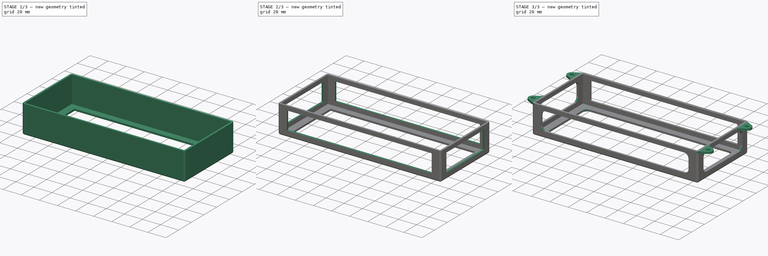
[diagram: build sequence overview — one tinted view per stage of 3, left to right]
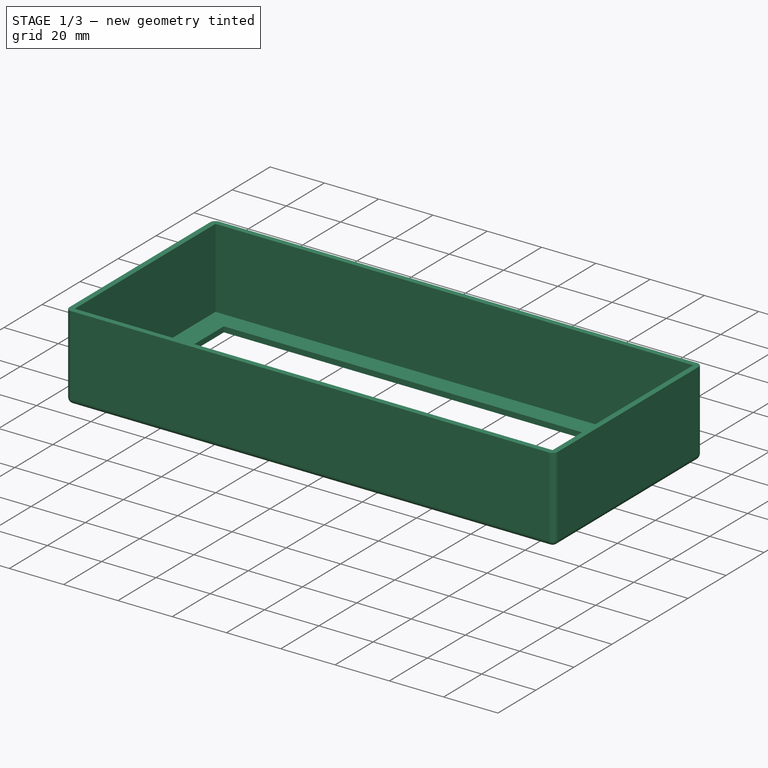
[diagram: stage 1 of 3 — iso view after this stage's code; geometry added in this stage tinted green]
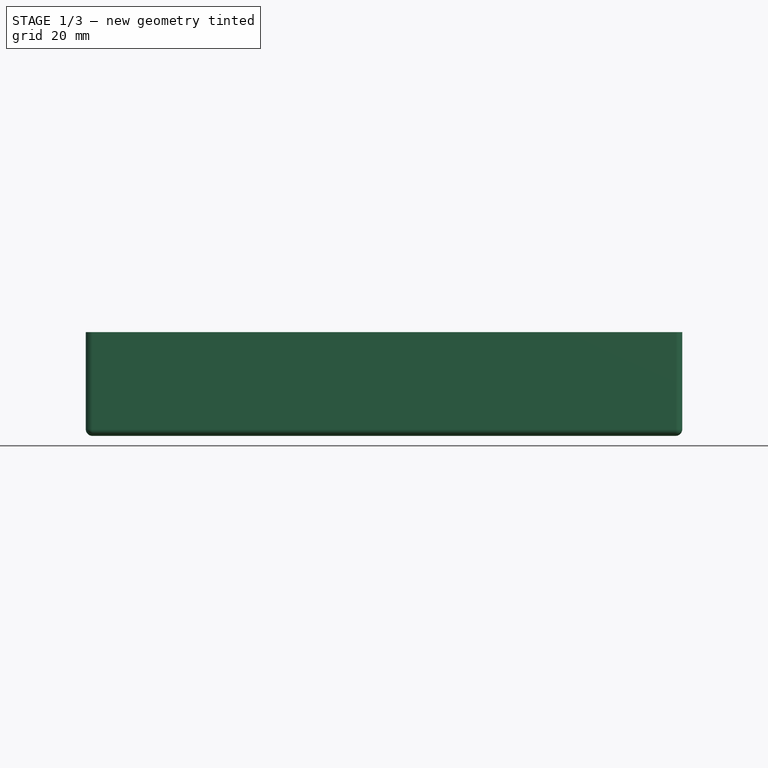
[diagram: stage 1 of 3 — front view after this stage's code; geometry added in this stage tinted green]
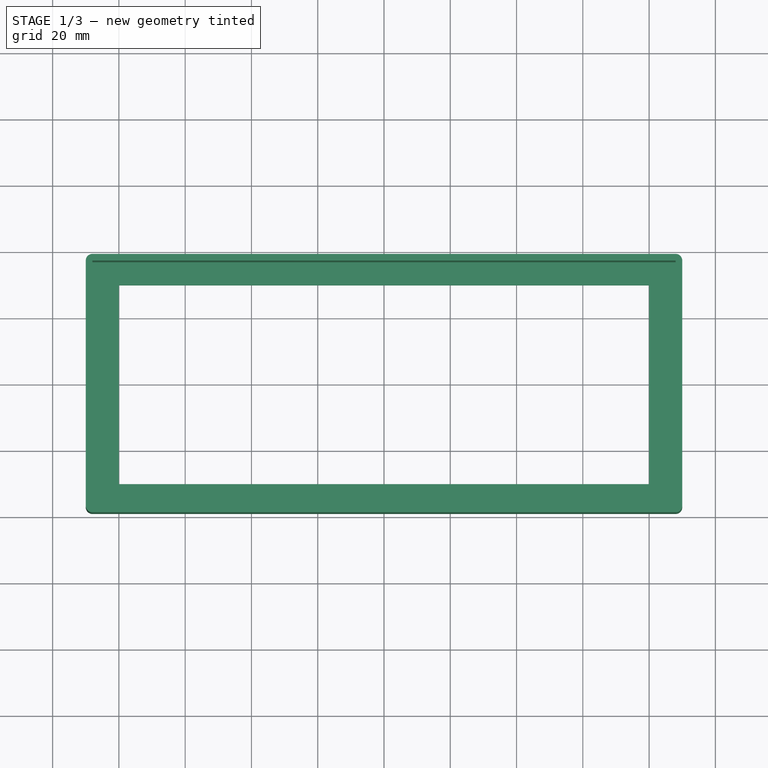
[diagram: stage 1 of 3 — top view after this stage's code; geometry added in this stage tinted green]
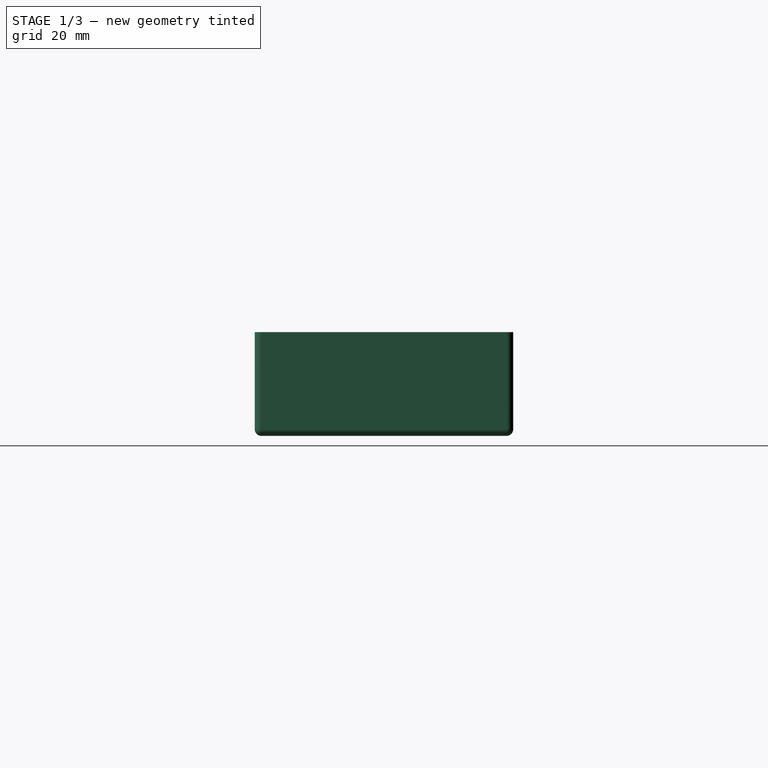
[diagram: stage 1 of 3 — right view after this stage's code; geometry added in this stage tinted green]
FCSTD DOCUMENT  (FreeCAD 0.21R33771 (Git))
Label: keepLiNK_switch_holder
License: All rights reserved
LicenseURL: https://en.wikipedia.org/wiki/All_rights_reserved
objects: Sketcher::SketchObject×5, PartDesign::Pocket×3, PartDesign::Body×2, App::Part×2, PartDesign::Pad×2, PartDesign::Fillet×2, Spreadsheet::Sheet×1, Part::Feature×1, PartDesign::Thickness×1, PartDesign::ShapeBinder×1
note: 25 computed .brp shape members not serialized (recipe doc carries the construction recipe); baked Part::Feature solids carry a one-line shape summary decoded from their .brp

FEATURE [PartDesign::Body] Body
  Origin = -> Origin
FEATURE [App::Part] Part  label="PartHolder"
  Group = -> [Body]
  Origin = -> Origin001
FEATURE [Sketcher::SketchObject] Sketch
  FullyConstrained = true
  MapMode = 5
  Support = -> [XY_Plane003]
  expr: Constraints[10] = Spreadsheet.width
  expr: Constraints[9] = Spreadsheet.depth
  sketch-geometry (4):
    g0: LineSegment StartX=-88 StartY=-37 StartZ=0 EndX=88 EndY=-37 EndZ=0
    g1: LineSegment StartX=88 StartY=-37 StartZ=0 EndX=88 EndY=37 EndZ=0
    g2: LineSegment StartX=88 StartY=37 StartZ=0 EndX=-88 EndY=37 EndZ=0
    g3: LineSegment StartX=-88 StartY=37 StartZ=0 EndX=-88 EndY=-37 EndZ=0
  constraints (11):
    c: Coincident(g0,g1)
    c: Coincident(g1,g2)
    c: Coincident(g2,g3)
    c: Coincident(g3,g0)
    c: Horizontal(g0)
    c: Horizontal(g2)
    c: Vertical(g1)
    c: Vertical(g3)
    c: Symmetric(g1,g0,g-1)
    c: DistanceY(g1,g1) = 74
    c: DistanceX(g0,g0) = 176
FEATURE [PartDesign::Pad] Pad
  Direction = (0,0,1)
  Length = 29.3
  Length2 = 10
  Profile = -> Sketch
  ReferenceAxis = -> Sketch [N_Axis]
  Type = 0
  expr: Length = Spreadsheet.height
FEATURE [Spreadsheet::Sheet] Spreadsheet
  cells = A1='width; B1==17.5 cm; C1(width)==B1 + B4; A2='height; B2==28.3 mm; C2(height)==B2 + B4; A3='depth; B3==73 mm; C3(depth)==B3 + B4; A4='tolerance; B4==1 mm
FEATURE [Part::Feature] Part__Feature  label="C-5406491-1"
  Placement = pos=(-21.4,-38.4,13.7) rot=(1,0,0;1.5708rad)
  shape: bbox 116.9 x 21.34 x 18.5 mm, 2014 faces (baked)
FEATURE [Sketcher::SketchObject] Sketch001
  FullyConstrained = true
  MapMode = 5
  Support = -> [XY_Plane003]
  sketch-geometry (4):
    g0: LineSegment StartX=-80 StartY=30 StartZ=0 EndX=80 EndY=30 EndZ=0
    g1: LineSegment StartX=80 StartY=30 StartZ=0 EndX=80 EndY=-30 EndZ=0
    g2: LineSegment StartX=80 StartY=-30 StartZ=0 EndX=-80 EndY=-30 EndZ=0
    g3: LineSegment StartX=-80 StartY=-30 StartZ=0 EndX=-80 EndY=30 EndZ=0
  constraints (11):
    c: Coincident(g0,g1)
    c: Coincident(g1,g2)
    c: Coincident(g2,g3)
    c: Coincident(g3,g0)
    c: Horizontal(g0)
    c: Horizontal(g2)
    c: Vertical(g1)
    c: Vertical(g3)
    c: Symmetric(g2,g0,g-1)
    c: DistanceX(g0,g0) = 160
    c: DistanceY(g3,g3) = 60
FEATURE [Sketcher::SketchObject] Sketch002
  ExternalGeometry = -> [Pad]
  FullyConstrained = true
  MapMode = 5
  Placement = pos=(0,0,0) rot=(1,0,0;1.5708rad)
  Support = -> [XZ_Plane003]
  sketch-geometry (5):
    g0: LineSegment StartX=-80 StartY=24.65 StartZ=0 EndX=80 EndY=24.65 EndZ=0
    g1: LineSegment StartX=80 StartY=24.65 StartZ=0 EndX=80 EndY=4.65 EndZ=0
    g2: LineSegment StartX=80 StartY=4.65 StartZ=0 EndX=-80 EndY=4.65 EndZ=0
    g3: LineSegment StartX=-80 StartY=4.65 StartZ=0 EndX=-80 EndY=24.65 EndZ=0
    g4: GeomPoint X=-1.3e-15 Y=14.65 Z=0
  constraints (12):
    c: Coincident(g0,g1)
    c: Coincident(g1,g2)
    c: Coincident(g2,g3)
    c: Coincident(g3,g0)
    c: Horizontal(g0)
    c: Horizontal(g2)
    c: Vertical(g1)
    c: Vertical(g3)
    c: Symmetric(g0,g2,g4)
    c: Symmetric(g-4,g-3,g4)
    c: DistanceX(g0,g0) = 160
    c: DistanceY(g3,g3) = 20
FEATURE [Sketcher::SketchObject] Sketch003
  ExternalGeometry = -> [Pad]
  FullyConstrained = true
  MapMode = 5
  Placement = pos=(0,0,0) rot=(0.57735,0.57735,0.57735;2.0944rad)
  Support = -> [YZ_Plane003]
  sketch-geometry (5):
    g0: LineSegment StartX=-30 StartY=24.65 StartZ=0 EndX=30 EndY=24.65 EndZ=0
    g1: LineSegment StartX=30 StartY=24.65 StartZ=0 EndX=30 EndY=4.65 EndZ=0
    g2: LineSegment StartX=30 StartY=4.65 StartZ=0 EndX=-30 EndY=4.65 EndZ=0
    g3: LineSegment StartX=-30 StartY=4.65 StartZ=0 EndX=-30 EndY=24.65 EndZ=0
    g4: GeomPoint X=1.86e-14 Y=14.65 Z=0
  constraints (12):
    c: Coincident(g0,g1)
    c: Coincident(g1,g2)
    c: Coincident(g2,g3)
    c: Coincident(g3,g0)
    c: Horizontal(g0)
    c: Horizontal(g2)
    c: Vertical(g1)
    c: Vertical(g3)
    c: Symmetric(g2,g0,g4)
    c: Symmetric(g-4,g-3,g4)
    c: DistanceY(g3,g3) = 20
    c: DistanceX(g0,g0) = 60
FEATURE [PartDesign::Thickness] Thickness
  Base = -> Pad [Face6]
  BaseFeature = -> Pad
  Intersection = false
  Join = 0
  Mode = 1
  SupportTransform = false
  Value = 2
FEATURE [PartDesign::Pocket] Pocket
  BaseFeature = -> Thickness
  Direction = (0,0,-1)
  Length = 5
  Length2 = 5
  Profile = -> Sketch001
  ReferenceAxis = -> Sketch001 [N_Axis]
  Type = 1
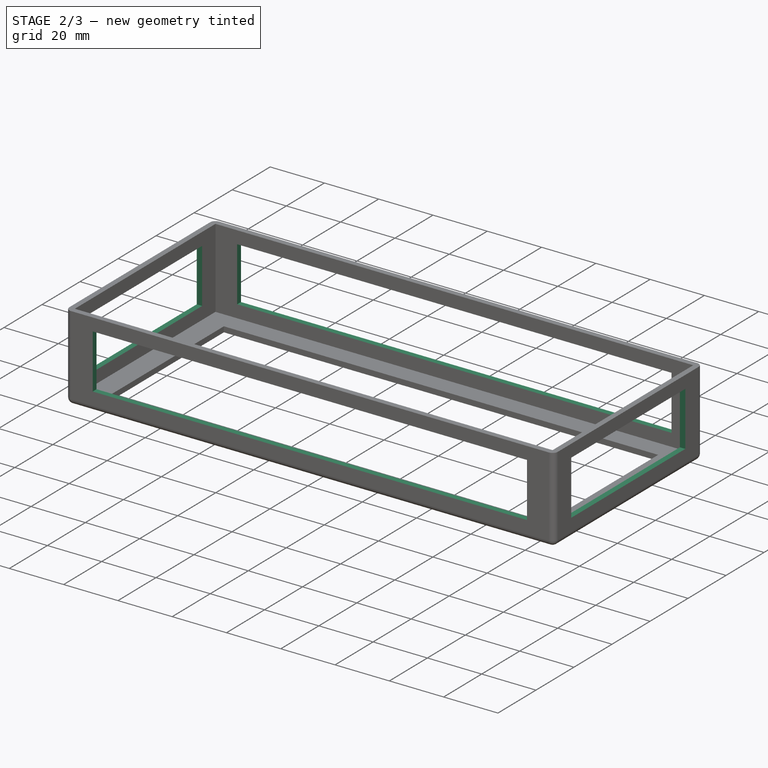
[diagram: stage 2 of 3 — iso view after this stage's code; geometry added in this stage tinted green]
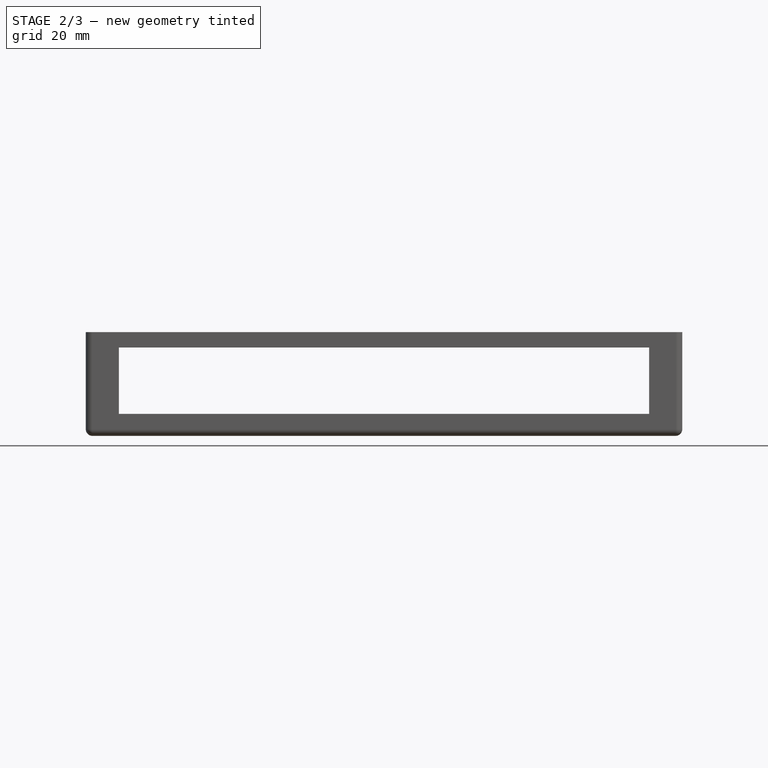
[diagram: stage 2 of 3 — front view after this stage's code; geometry added in this stage tinted green]
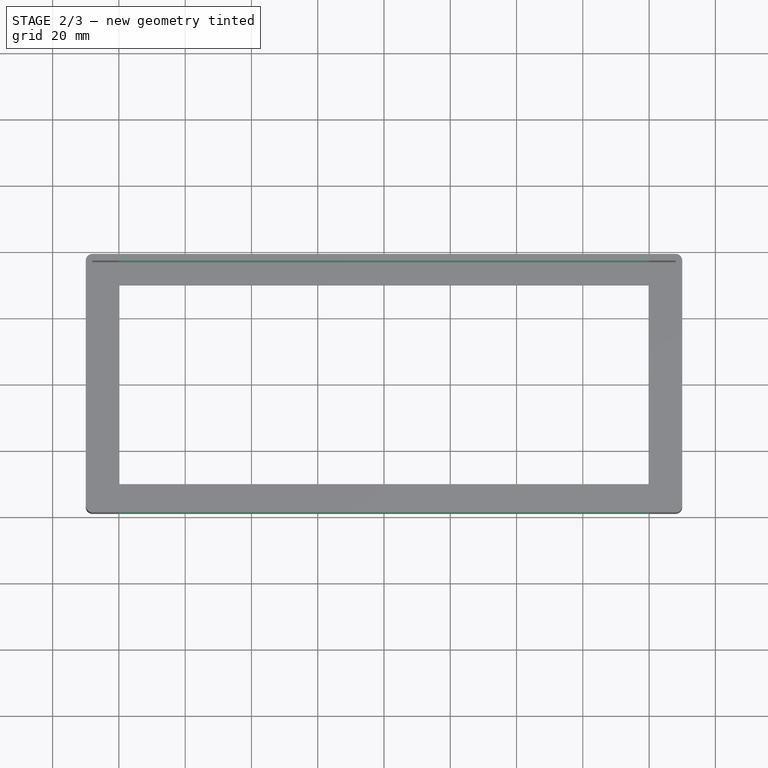
[diagram: stage 2 of 3 — top view after this stage's code; geometry added in this stage tinted green]
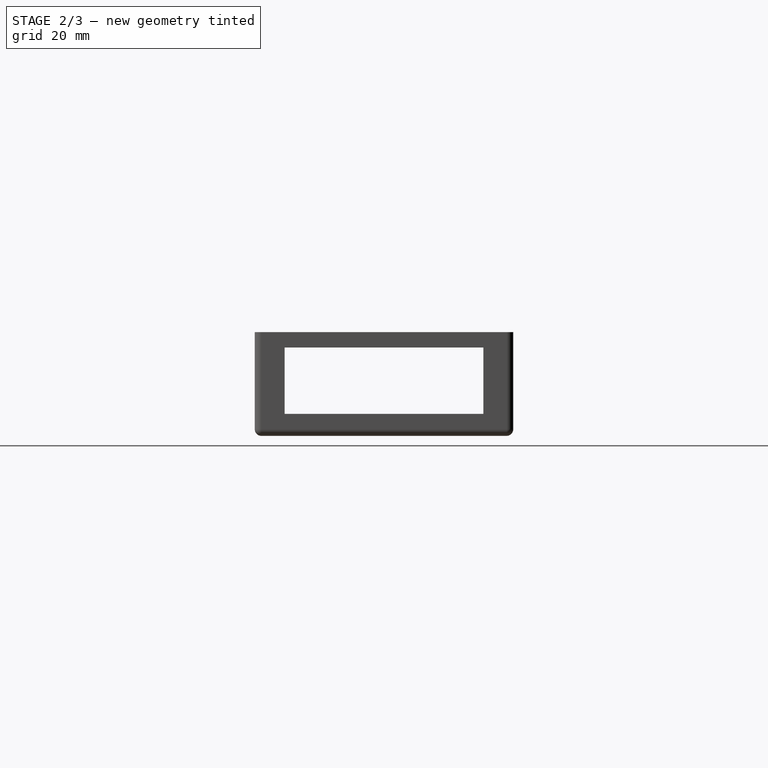
[diagram: stage 2 of 3 — right view after this stage's code; geometry added in this stage tinted green]
FEATURE [PartDesign::Pocket] Pocket001
  BaseFeature = -> Pocket
  Direction = (-1,2e-16,-3e-16)
  Length = 5
  Length2 = 5
  Midplane = true
  Profile = -> Sketch003
  ReferenceAxis = -> Sketch003 [N_Axis]
  Type = 1
FEATURE [PartDesign::Pocket] Pocket002
  BaseFeature = -> Pocket001
  Direction = (0,1,2e-16)
  Length = 5
  Length2 = 5
  Midplane = true
  Profile = -> Sketch002
  ReferenceAxis = -> Sketch002 [N_Axis]
  Type = 1
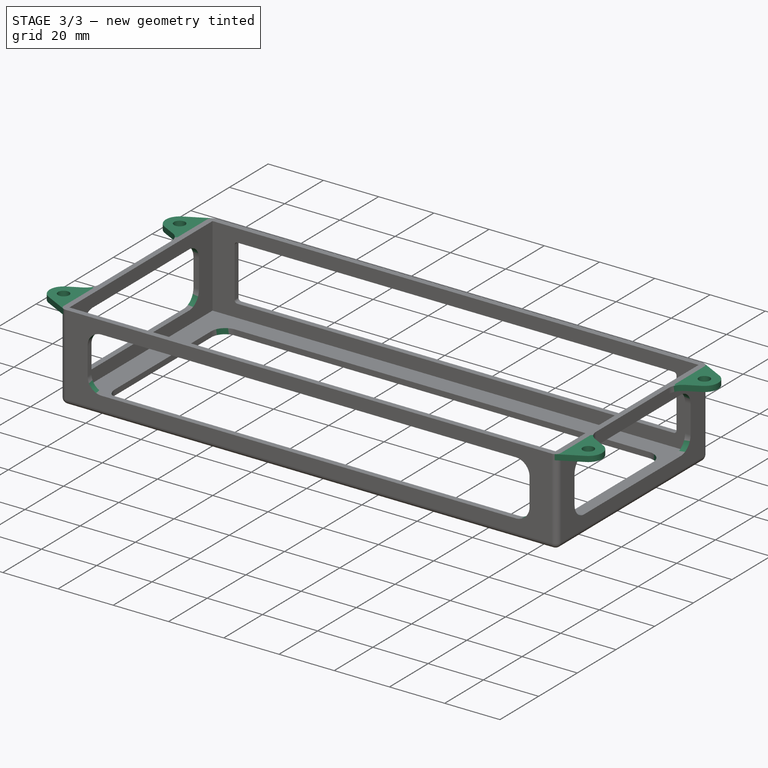
[diagram: stage 3 of 3 — iso view after this stage's code; geometry added in this stage tinted green]
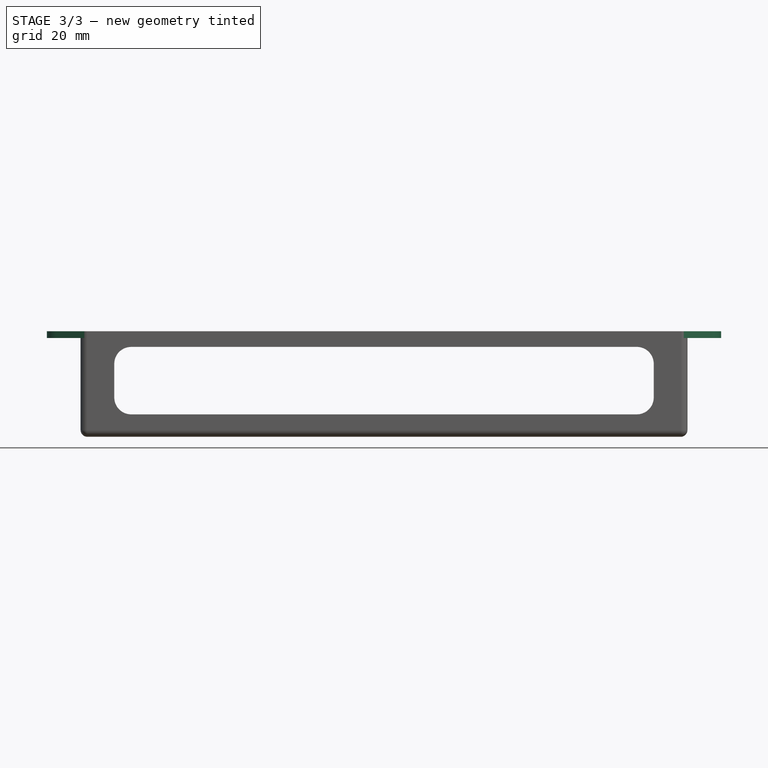
[diagram: stage 3 of 3 — front view after this stage's code; geometry added in this stage tinted green]
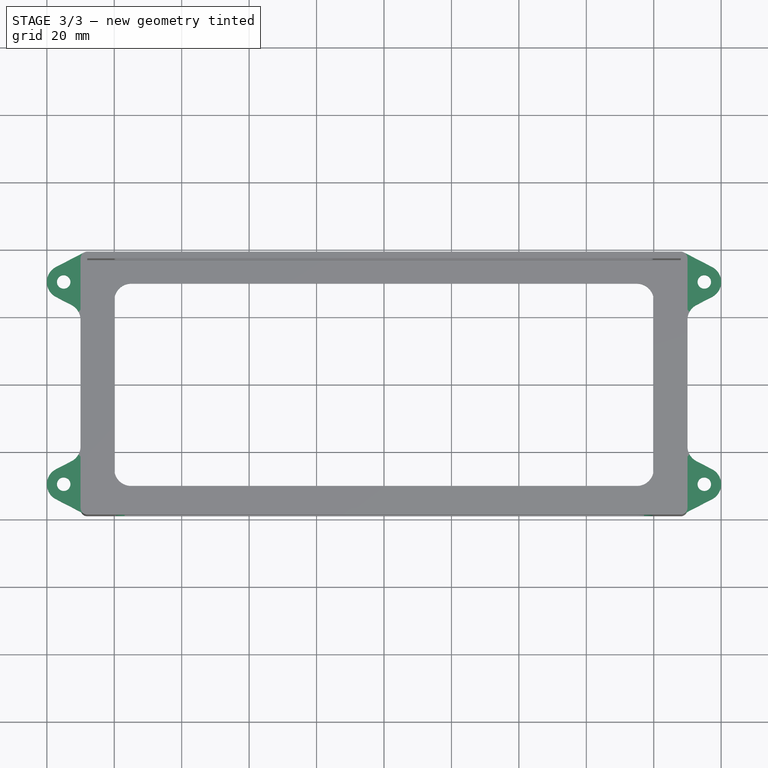
[diagram: stage 3 of 3 — top view after this stage's code; geometry added in this stage tinted green]
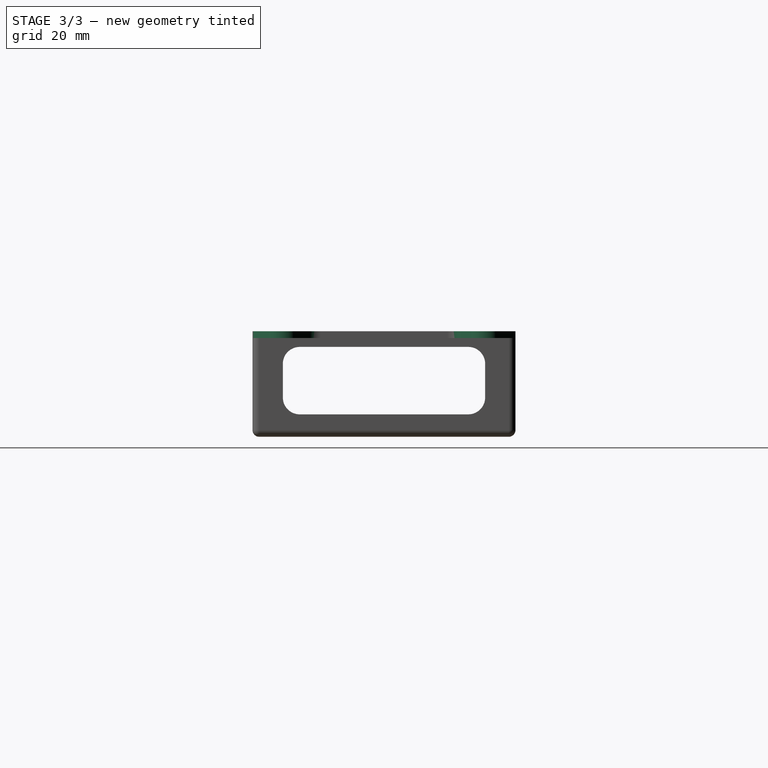
[diagram: stage 3 of 3 — right view after this stage's code; geometry added in this stage tinted green]
FEATURE [PartDesign::ShapeBinder] ShapeBinder
  Placement = pos=(0,0,29.3) rot=(0,0,1;0rad)
  Support = -> [Pocket002]
  TraceSupport = false
FEATURE [Sketcher::SketchObject] Sketch004
  ExternalGeometry = -> [Pocket002,ShapeBinder]
  FullyConstrained = true
  MapMode = 5
  Placement = pos=(0,0,29.3) rot=(0,0,1;0rad)
  Support = -> [ShapeBinder]
  sketch-geometry (32):
    g0: Circle CenterX=95 CenterY=30 CenterZ=0 NormalX=0 NormalY=0 NormalZ=1 AngleXU=0 Radius=2
    g1: LineSegment StartX=-95 StartY=-30 StartZ=0 EndX=95 EndY=-30 EndZ=0
    g2: LineSegment StartX=95 StartY=-30 StartZ=0 EndX=95 EndY=30 EndZ=0
    g3: LineSegment StartX=95 StartY=30 StartZ=0 EndX=-95 EndY=30 EndZ=0
    g4: LineSegment StartX=-95 StartY=30 StartZ=0 EndX=-95 EndY=-30 EndZ=0
    g5: ArcOfCircle CenterX=95 CenterY=30 CenterZ=0 NormalX=0 NormalY=0 NormalZ=1 AngleXU=0 Radius=5 StartAngle=5.1899 EndAngle=7.37647
    g6: LineSegment StartX=88.9191 StartY=38.7763 StartZ=0 EndX=97.2979 EndY=34.4407 EndZ=0
    g7: LineSegment StartX=97.2979 StartY=25.5593 StartZ=0 EndX=90 EndY=21.783 EndZ=0
    g8: LineSegment StartX=90 StartY=37 StartZ=0 EndX=90 EndY=21.783 EndZ=0
    g9: Circle CenterX=95 CenterY=-30 CenterZ=0 NormalX=0 NormalY=0 NormalZ=1 AngleXU=0 Radius=2
    g10: Circle CenterX=-95 CenterY=30 CenterZ=0 NormalX=0 NormalY=0 NormalZ=1 AngleXU=0 Radius=2
    g11: Circle CenterX=-95 CenterY=-30 CenterZ=0 NormalX=0 NormalY=0 NormalZ=1 AngleXU=0 Radius=2
    g12: ArcOfCircle CenterX=95 CenterY=-30 CenterZ=0 NormalX=0 NormalY=0 NormalZ=1 AngleXU=0 Radius=5 StartAngle=5.1899 EndAngle=7.37647
    g13: ArcOfCircle CenterX=-95 CenterY=-30 CenterZ=0 NormalX=0 NormalY=0 NormalZ=1 AngleXU=0 Radius=5 StartAngle=2.04831 EndAngle=4.23488
    g14: ArcOfCircle CenterX=-95 CenterY=30 CenterZ=0 NormalX=0 NormalY=0 NormalZ=1 AngleXU=0 Radius=5 StartAngle=2.04831 EndAngle=4.23488
    g15: LineSegment StartX=97.2979 StartY=-25.5593 StartZ=0 EndX=90 EndY=-21.783 EndZ=0
    g16: LineSegment StartX=-97.2979 StartY=-25.5593 StartZ=0 EndX=-90 EndY=-21.783 EndZ=0
    g17: LineSegment StartX=-97.2979 StartY=25.5593 StartZ=0 EndX=-90 EndY=21.783 EndZ=0
    g18: LineSegment StartX=88.9191 StartY=-38.7763 StartZ=0 EndX=97.2979 EndY=-34.4407 EndZ=0
    g19: LineSegment StartX=-97.2979 StartY=-34.4407 StartZ=0 EndX=-88.9191 EndY=-38.7763 EndZ=0
    g20: LineSegment StartX=-97.2979 StartY=34.4407 StartZ=0 EndX=-88.9191 EndY=38.7763 EndZ=0
    g21: LineSegment StartX=-90 StartY=21.783 StartZ=0 EndX=-90 EndY=37 EndZ=0
    g22: ArcOfCircle CenterX=-88 CenterY=37 CenterZ=0 NormalX=0 NormalY=0 NormalZ=1 AngleXU=0 Radius=2 StartAngle=2.04831 EndAngle=3.14159
    g23: LineSegment StartX=-88 StartY=37 StartZ=0 EndX=-88.9191 EndY=38.7763 EndZ=0
    g24: LineSegment StartX=-88 StartY=-37 StartZ=0 EndX=-88.9191 EndY=-38.7763 EndZ=0
    g25: LineSegment StartX=-90 StartY=-21.783 StartZ=0 EndX=-90 EndY=-37 EndZ=0
    g26: ArcOfCircle CenterX=-88 CenterY=-37 CenterZ=0 NormalX=0 NormalY=0 NormalZ=1 AngleXU=0 Radius=2 StartAngle=3.14159 EndAngle=4.23488
    g27: LineSegment StartX=90 StartY=-21.783 StartZ=0 EndX=90 EndY=-37 EndZ=0
    g28: LineSegment StartX=88 StartY=-37 StartZ=0 EndX=88.9191 EndY=-38.7763 EndZ=0
    g29: ArcOfCircle CenterX=88 CenterY=-37 CenterZ=0 NormalX=0 NormalY=0 NormalZ=1 AngleXU=0 Radius=2 StartAngle=5.1899 EndAngle=6.28319
    g30: ArcOfCircle CenterX=88 CenterY=37 CenterZ=0 NormalX=0 NormalY=0 NormalZ=1 AngleXU=0 Radius=2 StartAngle=1e-16 EndAngle=1.09329
    g31: LineSegment StartX=88 StartY=37 StartZ=0 EndX=88.9191 EndY=38.7763 EndZ=0
  constraints (76):
    c: Coincident(g1,g2)
    c: Coincident(g2,g3)
    c: Coincident(g3,g4)
    c: Coincident(g4,g1)
    c: Horizontal(g1)
    c: Horizontal(g3)
    c: Vertical(g2)
    c: Vertical(g4)
    c: Coincident(g2,g0)
    c: Diameter(g0) = 4
    c: DistanceY(g2,g2) = 60
    c: Coincident(g5,g0)
    c: Tangent(g6,g-3) = 1.5708
    c: Coincident(g7,g5)
    c: PointOnObject(g7,g-8)
    c: Tangent(g7,g5,g5) = 1.5708
    c: Vertical(g5,g5)
    c: Symmetric(g0,g1,g-1)
    c: DistanceX(g-8,g0) = 5
    c: Coincident(g8,g-8)
    c: Coincident(g8,g7)
    c: Diameter(g5) = 10
    c: Tangent(g6,g5) = 1.5708
    c: Coincident(g9,g1)
    c: Coincident(g10,g3)
    c: Coincident(g11,g1)
    c: Equal(g0,g9)
    c: Equal(g9,g11)
    c: Equal(g11,g10)
    c: Coincident(g12,g9)
    c: Coincident(g13,g11)
    c: Coincident(g14,g10)
    c: Equal(g5,g12)
    c: Equal(g12,g13)
    c: Equal(g13,g14)
    c: PointOnObject(g15,g-8)
    c: PointOnObject(g16,g-7)
    c: PointOnObject(g17,g-7)
    c: Tangent(g17,g14) = -1.5708
    c: Tangent(g15,g12) = -1.5708
    c: Tangent(g16,g13) = 1.5708
    c: Tangent(g18,g12) = -1.5708
    c: Tangent(g18,g-4) = -1.5708
    c: Vertical(g12,g12)
    c: Tangent(g19,g13) = -1.5708
    c: Vertical(g13,g13)
    c: Vertical(g14,g14)
    c: Tangent(g20,g14) = 1.5708
    c: Tangent(g20,g-6) = 1.5708
    c: Coincident(g21,g17)
    c: Coincident(g21,g-7)
    c: Coincident(g22,g-6)
    c: Coincident(g23,g22)
    c: Coincident(g23,g20)
    c: Coincident(g22,g21)
    c: PointOnObject(g22,g23)
    c: Tangent(g19,g-5) = -1.5708
    c: Coincident(g24,g-5)
    c: Coincident(g24,g19)
    c: Coincident(g25,g16)
    c: Coincident(g25,g-7)
    c: Coincident(g26,g24)
    c: Coincident(g26,g25)
    c: PointOnObject(g26,g24)
    c: Coincident(g27,g15)
    c: Coincident(g27,g-8)
    c: Coincident(g28,g-4)
    c: Coincident(g28,g18)
    c: Coincident(g29,g28)
    c: Coincident(g29,g27)
    c: PointOnObject(g29,g28)
    c: Coincident(g30,g-3)
    c: Coincident(g30,g8)
    c: Coincident(g31,g30)
    c: Coincident(g31,g6)
    c: PointOnObject(g30,g31)
FEATURE [PartDesign::Pad] Pad001
  BaseFeature = -> Pocket002
  Direction = (0,0,1)
  Length = 2
  Length2 = 10
  Profile = -> Sketch004
  ReferenceAxis = -> Sketch004 [N_Axis]
  Reversed = true
  Type = 0
FEATURE [PartDesign::Fillet] Fillet
  Base = -> Pad001 [Edge67,Edge65,Edge71,Edge69,Edge51,Edge49,Edge46,Edge47,Edge131,Edge132,Edge129,Edge130,Edge57,Edge63,Edge61,Edge59,Edge109,Edge108,Edge86,Edge85]
  BaseFeature = -> Pad001
  Radius = 5
  SupportTransform = false
  UseAllEdges = false
FEATURE [PartDesign::Fillet] Fillet001
  Base = -> Fillet [Edge196,Edge197,Edge199,Edge198]
  BaseFeature = -> Fillet
  Radius = 1
  SupportTransform = false
  UseAllEdges = false
FEATURE [PartDesign::Body] Body001
  Group = -> [Sketch,Pad,Sketch001,Sketch002,Sketch003,Thickness,Pocket,Pocket001,Pocket002,ShapeBinder,Sketch004,Pad001,Fillet,Fillet001]
  Origin = -> Origin003
  Tip = -> Fillet001
FEATURE [App::Part] Part001  label="PartSwitch"
  Group = -> [Body001,Part__Feature]
  Origin = -> Origin002
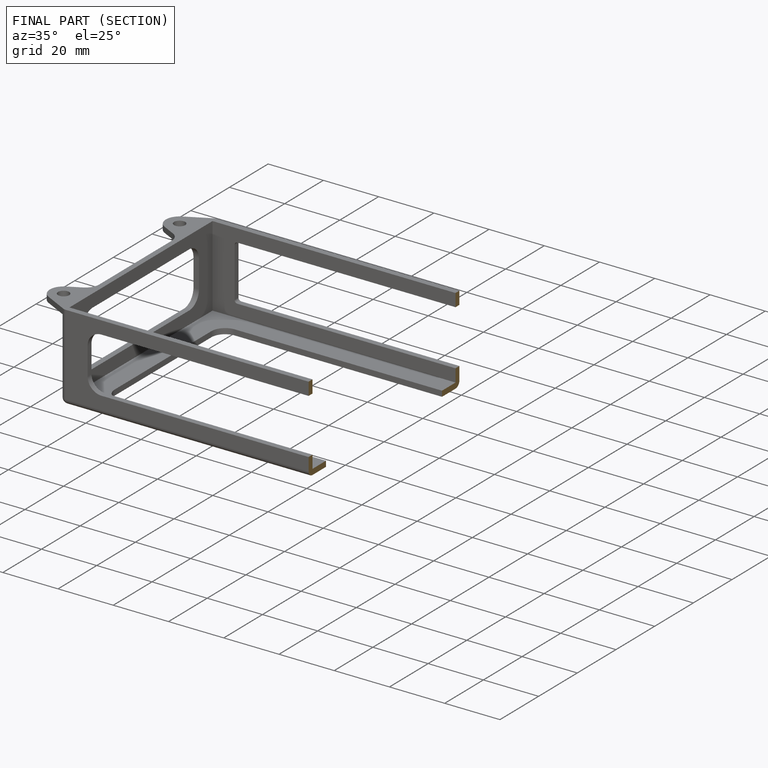
[diagram: finished part — half-section view (interior)]
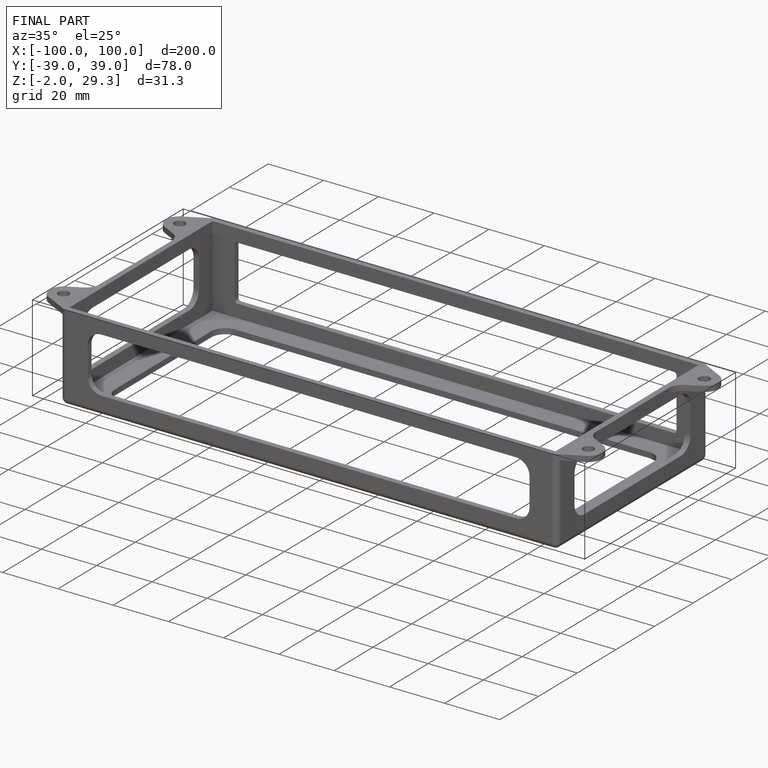
[diagram: finished part — iso view with bounding-box wireframe]
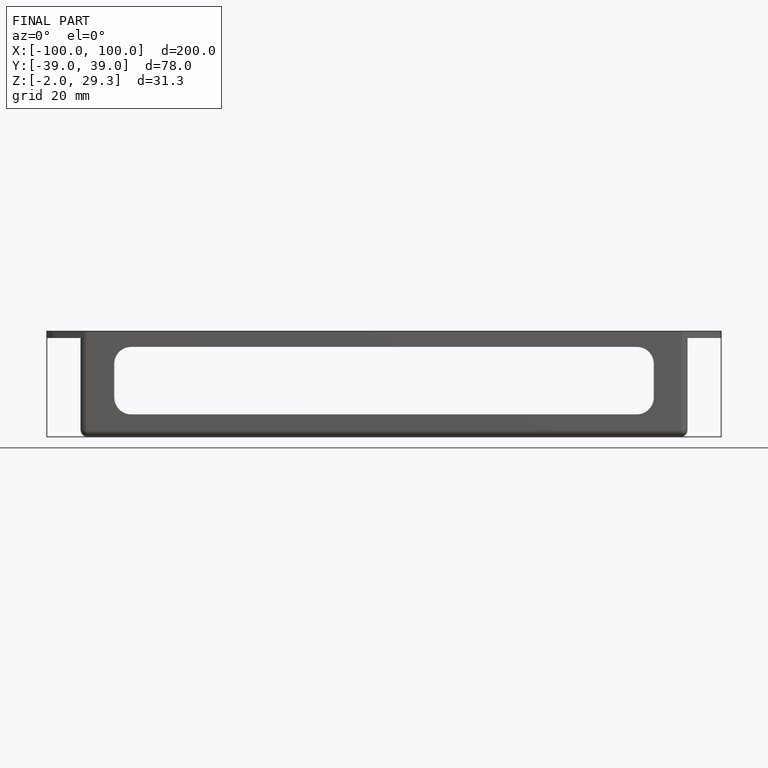
[diagram: finished part — front view with bounding-box wireframe]
